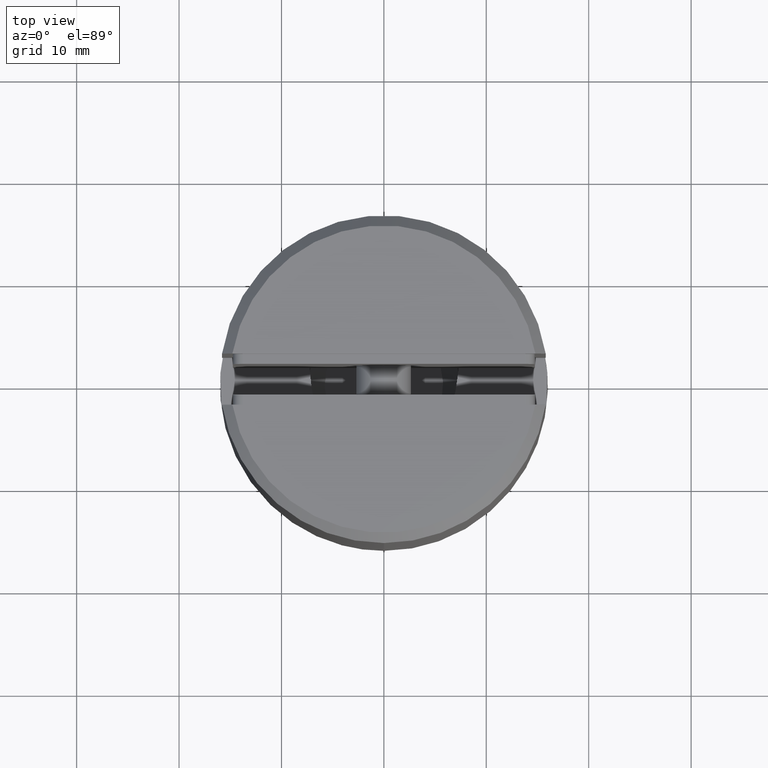
[diagram: clean part render]
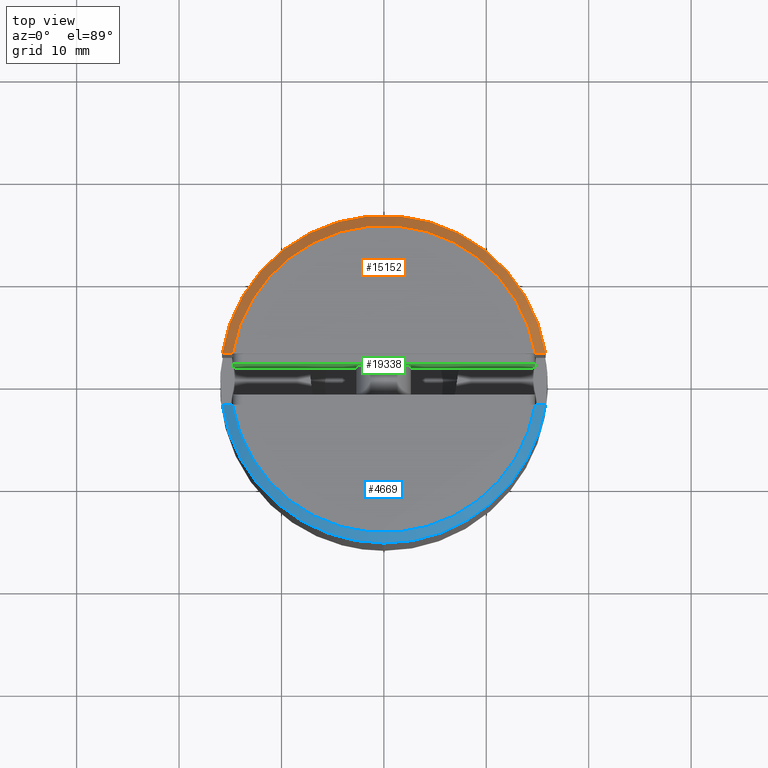
[diagram: same view with three faces highlighted in distinct colors, each labeled with its STEP entity id]
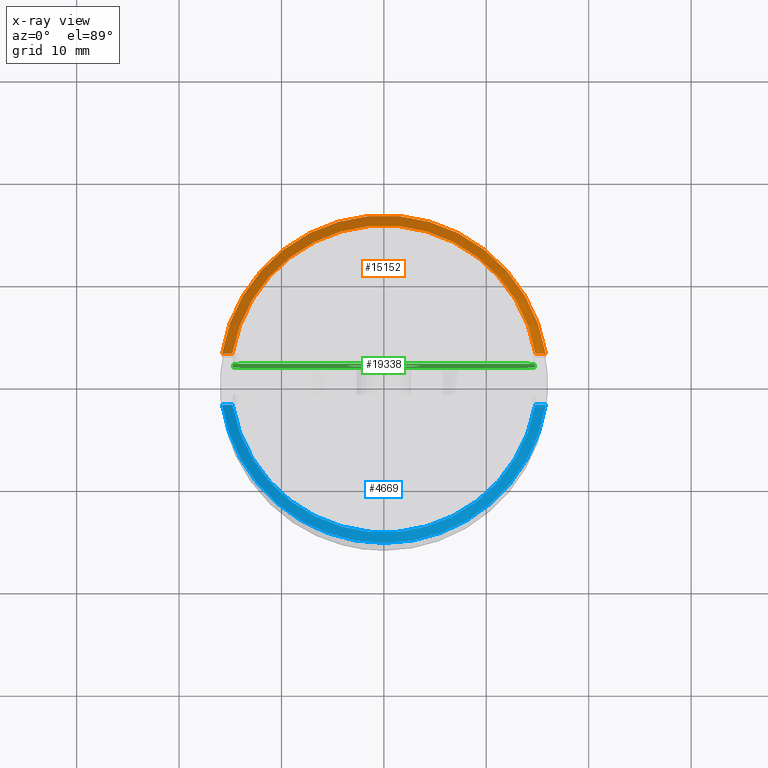
[diagram: x-ray of the same camera — body ghosted, the three highlighted faces saturated]
A machine part, top view with three faces highlighted in distinct colors.
The next image is the same camera in x-ray (body ghosted, the three faces saturated) — at least one of them is partly hidden behind the body in this view.
Their STEP definitions:

[orange] entity #15152 — the highlighted conical surface has half-angle 45 deg.
#859 = EDGE_LOOP ( 'NONE', ( #15137, #18231, #10368, #5494 ) ) ;
#1446 = CARTESIAN_POINT ( 'NONE',  ( -15.80348062927910924, 2.500000000000000444, 23.99999999999998934 ) ) ;
#2166 = B_SPLINE_CURVE_WITH_KNOTS ( 'NONE', 3,
 ( #7912, #19281, #11191, #1446 ),
 .UNSPECIFIED., .F., .F.,
 ( 4, 4 ),
 ( 0.000000000000000000, 0.001423635744345227083 ),
 .UNSPECIFIED. ) ;
#2239 = VERTEX_POINT ( 'NONE', #18148 ) ;
#2245 = VERTEX_POINT ( 'NONE', #19552 ) ;
#2541 = CONICAL_SURFACE ( 'NONE', #15593, 14.99999999999999645, 0.7853981633974447263 ) ;
#2667 = DIRECTION ( 'NONE',  ( 0.000000000000000000, 0.000000000000000000, -1.000000000000000000 ) ) ;
#3073 = EDGE_CURVE ( 'NONE', #2245, #2239, #4942, .T. ) ;
#3318 = VERTEX_POINT ( 'NONE', #18923 ) ;
#4942 = CIRCLE ( 'NONE', #12904, 14.99999999999999645 ) ;
#5019 = VERTEX_POINT ( 'NONE', #7646 ) ;
#5395 = CIRCLE ( 'NONE', #9108, 16.00000000000000000 ) ;
#5494 = ORIENTED_EDGE ( 'NONE', *, *, #3073, .F. ) ;
#7646 = CARTESIAN_POINT ( 'NONE',  ( 15.80348062927910924, 2.500000000000000444, 23.99999999999998934 ) ) ;
#7912 = CARTESIAN_POINT ( 'NONE',  ( -14.79019945774903455, 2.500000000000000444, 25.00000000000000000 ) ) ;
#8554 = DIRECTION ( 'NONE',  ( 0.000000000000000000, 0.000000000000000000, 1.000000000000000000 ) ) ;
#8626 = CARTESIAN_POINT ( 'NONE',  ( 0.000000000000000000, 0.000000000000000000, 25.00000000000000000 ) ) ;
#8646 = DIRECTION ( 'NONE',  ( -1.000000000000000000, 0.000000000000000000, 0.000000000000000000 ) ) ;
#8978 = CARTESIAN_POINT ( 'NONE',  ( 0.000000000000000000, 0.000000000000000000, 23.99999999999998934 ) ) ;
#9108 = AXIS2_PLACEMENT_3D ( 'NONE', #8978, #2667, #13966 ) ;
#10368 = ORIENTED_EDGE ( 'NONE', *, *, #20617, .F. ) ;
#11191 = CARTESIAN_POINT ( 'NONE',  ( -15.46585946293021863, 2.500000000000000444, 24.33347434765182271 ) ) ;
#12904 = AXIS2_PLACEMENT_3D ( 'NONE', #8626, #8554, #16606 ) ;
#13619 = CARTESIAN_POINT ( 'NONE',  ( 0.000000000000000000, 0.000000000000000000, 25.00000000000000000 ) ) ;
#13966 = DIRECTION ( 'NONE',  ( 1.000000000000000000, 0.000000000000000000, 0.000000000000000000 ) ) ;
#15075 = EDGE_CURVE ( 'NONE', #5019, #2245, #20420, .T. ) ;
#15137 = ORIENTED_EDGE ( 'NONE', *, *, #15075, .F. ) ;
#15152 = ADVANCED_FACE ( 'NONE', ( #20088 ), #2541, .T. ) ;
#15192 = DIRECTION ( 'NONE',  ( 0.000000000000000000, 0.000000000000000000, -1.000000000000000000 ) ) ;
#15593 = AXIS2_PLACEMENT_3D ( 'NONE', #13619, #15192, #8646 ) ;
#16606 = DIRECTION ( 'NONE',  ( 1.000000000000000000, 0.000000000000000000, 0.000000000000000000 ) ) ;
#16694 = CARTESIAN_POINT ( 'NONE',  ( 14.79019945774903633, 2.500000000000000444, 25.00000000000000000 ) ) ;
#16762 = CARTESIAN_POINT ( 'NONE',  ( 15.12810841561664787, 2.500000000000000444, 24.66681727430519544 ) ) ;
#16894 = CARTESIAN_POINT ( 'NONE',  ( 15.46585946293022218, 2.500000000000000444, 24.33347434765182271 ) ) ;
#18148 = CARTESIAN_POINT ( 'NONE',  ( -14.79019945774903455, 2.500000000000000444, 25.00000000000000000 ) ) ;
#18231 = ORIENTED_EDGE ( 'NONE', *, *, #20460, .F. ) ;
#18923 = CARTESIAN_POINT ( 'NONE',  ( -15.80348062927910924, 2.500000000000000444, 23.99999999999998934 ) ) ;
#19281 = CARTESIAN_POINT ( 'NONE',  ( -15.12810841561664610, 2.500000000000000444, 24.66681727430519544 ) ) ;
#19552 = CARTESIAN_POINT ( 'NONE',  ( 14.79019945774903633, 2.500000000000000444, 25.00000000000000000 ) ) ;
#19866 = CARTESIAN_POINT ( 'NONE',  ( 15.80348062927910924, 2.500000000000000444, 23.99999999999998934 ) ) ;
#20088 = FACE_OUTER_BOUND ( 'NONE', #859, .T. ) ;
#20420 = B_SPLINE_CURVE_WITH_KNOTS ( 'NONE', 3,
 ( #19866, #16894, #16762, #16694 ),
 .UNSPECIFIED., .F., .F.,
 ( 4, 4 ),
 ( 0.000000000000000000, 0.001423635744345223830 ),
 .UNSPECIFIED. ) ;
#20460 = EDGE_CURVE ( 'NONE', #3318, #5019, #5395, .T. ) ;
#20617 = EDGE_CURVE ( 'NONE', #2239, #3318, #2166, .T. ) ;

[blue] entity #4669 — the highlighted conical surface has half-angle 45 deg.
#421 = EDGE_CURVE ( 'NONE', #2759, #617, #17962, .T. ) ;
#617 = VERTEX_POINT ( 'NONE', #7041 ) ;
#636 = DIRECTION ( 'NONE',  ( -1.000000000000000000, 0.000000000000000000, 0.000000000000000000 ) ) ;
#1705 = CARTESIAN_POINT ( 'NONE',  ( -15.80348062927910568, -2.500000000000001332, 38.99999999999999289 ) ) ;
#2759 = VERTEX_POINT ( 'NONE', #20364 ) ;
#2778 = CIRCLE ( 'NONE', #17125, 15.00000000000000000 ) ;
#2953 = CARTESIAN_POINT ( 'NONE',  ( 14.79019945774903810, -2.500000000000001332, 40.00000000000000000 ) ) ;
#3355 = CARTESIAN_POINT ( 'NONE',  ( -15.12810841561664787, -2.500000000000001332, 39.66681727430518833 ) ) ;
#4669 = ADVANCED_FACE ( 'NONE', ( #12285 ), #19626, .T. ) ;
#4788 = VERTEX_POINT ( 'NONE', #19741 ) ;
#5010 = CARTESIAN_POINT ( 'NONE',  ( 15.12810841561665143, -2.500000000000001332, 39.66681727430518833 ) ) ;
#5564 = CARTESIAN_POINT ( 'NONE',  ( 0.000000000000000000, 4.946631544329935625E-16, 40.00000000000000000 ) ) ;
#7041 = CARTESIAN_POINT ( 'NONE',  ( -15.80348062927910568, -2.500000000000001332, 38.99999999999999289 ) ) ;
#7263 = CARTESIAN_POINT ( 'NONE',  ( 0.000000000000000000, 4.748766282556736780E-16, 38.99999999999999289 ) ) ;
#7479 = B_SPLINE_CURVE_WITH_KNOTS ( 'NONE', 3,
 ( #19528, #5010, #10334, #12640 ),
 .UNSPECIFIED., .F., .F.,
 ( 4, 4 ),
 ( 0.000000000000000000, 0.001423635744345217542 ),
 .UNSPECIFIED. ) ;
#8105 = CARTESIAN_POINT ( 'NONE',  ( -15.46585946293022218, -2.500000000000001776, 39.33347434765182271 ) ) ;
#8168 = DIRECTION ( 'NONE',  ( 0.000000000000000000, 1.000000000000000000, 0.000000000000000000 ) ) ;
#8236 = ORIENTED_EDGE ( 'NONE', *, *, #12964, .F. ) ;
#8903 = DIRECTION ( 'NONE',  ( 0.000000000000000000, -1.978652617731979205E-17, -1.000000000000000000 ) ) ;
#9615 = EDGE_LOOP ( 'NONE', ( #8236, #18978, #15852, #16499 ) ) ;
#10334 = CARTESIAN_POINT ( 'NONE',  ( 15.46585946293022218, -2.500000000000001332, 39.33347434765181561 ) ) ;
#10922 = B_SPLINE_CURVE_WITH_KNOTS ( 'NONE', 3,
 ( #1705, #8105, #3355, #13017 ),
 .UNSPECIFIED., .F., .F.,
 ( 4, 4 ),
 ( 3.469446951953614189E-18, 0.001423635744345220144 ),
 .UNSPECIFIED. ) ;
#12285 = FACE_OUTER_BOUND ( 'NONE', #9615, .T. ) ;
#12332 = DIRECTION ( 'NONE',  ( 0.000000000000000000, 1.000000000000000000, 0.000000000000000000 ) ) ;
#12640 = CARTESIAN_POINT ( 'NONE',  ( 15.80348062927910568, -2.500000000000001332, 38.99999999999999289 ) ) ;
#12964 = EDGE_CURVE ( 'NONE', #617, #4788, #10922, .T. ) ;
#13017 = CARTESIAN_POINT ( 'NONE',  ( -14.79019945774903988, -2.500000000000001332, 40.00000000000000000 ) ) ;
#15852 = ORIENTED_EDGE ( 'NONE', *, *, #16955, .F. ) ;
#15906 = AXIS2_PLACEMENT_3D ( 'NONE', #7263, #8903, #12332 ) ;
#16499 = ORIENTED_EDGE ( 'NONE', *, *, #17804, .F. ) ;
#16742 = AXIS2_PLACEMENT_3D ( 'NONE', #19464, #19537, #8168 ) ;
#16955 = EDGE_CURVE ( 'NONE', #20692, #2759, #7479, .T. ) ;
#17125 = AXIS2_PLACEMENT_3D ( 'NONE', #5564, #20122, #636 ) ;
#17804 = EDGE_CURVE ( 'NONE', #4788, #20692, #2778, .T. ) ;
#17962 = CIRCLE ( 'NONE', #15906, 16.00000000000000000 ) ;
#18978 = ORIENTED_EDGE ( 'NONE', *, *, #421, .F. ) ;
#19464 = CARTESIAN_POINT ( 'NONE',  ( 0.000000000000000000, 4.946631544329935625E-16, 40.00000000000000000 ) ) ;
#19528 = CARTESIAN_POINT ( 'NONE',  ( 14.79019945774903810, -2.500000000000001332, 40.00000000000000000 ) ) ;
#19537 = DIRECTION ( 'NONE',  ( 0.000000000000000000, -1.978652617731979205E-17, -1.000000000000000000 ) ) ;
#19626 = CONICAL_SURFACE ( 'NONE', #16742, 15.00000000000000000, 0.7853981633974447263 ) ;
#19741 = CARTESIAN_POINT ( 'NONE',  ( -14.79019945774903988, -2.500000000000001332, 40.00000000000000000 ) ) ;
#20122 = DIRECTION ( 'NONE',  ( 0.000000000000000000, 0.000000000000000000, 1.000000000000000000 ) ) ;
#20364 = CARTESIAN_POINT ( 'NONE',  ( 15.80348062927910568, -2.500000000000001332, 38.99999999999999289 ) ) ;
#20692 = VERTEX_POINT ( 'NONE', #2953 ) ;

[green] entity #19338 — the highlighted planar face has unit normal (0, -1, 0).
#78 = EDGE_LOOP ( 'NONE', ( #6790 ) ) ;
#713 = CARTESIAN_POINT ( 'NONE',  ( -13.75000000000000178, 0.000000000000000000, -10.24999999999999289 ) ) ;
#807 = DIRECTION ( 'NONE',  ( 0.000000000000000000, -1.000000000000000000, -0.000000000000000000 ) ) ;
#970 = DIRECTION ( 'NONE',  ( 0.000000000000000000, 0.000000000000000000, -1.000000000000000000 ) ) ;
#1275 = VERTEX_POINT ( 'NONE', #10006 ) ;
#1607 = CARTESIAN_POINT ( 'NONE',  ( -14.75000000000000000, 0.000000000000000000, 10.24999999999999822 ) ) ;
#2102 = LINE ( 'NONE', #5014, #8210 ) ;
#2255 = VECTOR ( 'NONE', #5699, 1000.000000000000000 ) ;
#2399 = CARTESIAN_POINT ( 'NONE',  ( -13.74999999999999822, 0.000000000000000000, 10.24999999999999822 ) ) ;
#2534 = EDGE_CURVE ( 'NONE', #1275, #1275, #2906, .T. ) ;
#2725 = AXIS2_PLACEMENT_3D ( 'NONE', #8418, #807, #20216 ) ;
#2828 = ORIENTED_EDGE ( 'NONE', *, *, #9321, .T. ) ;
#2874 = DIRECTION ( 'NONE',  ( 0.000000000000000000, 0.000000000000000000, -1.000000000000000000 ) ) ;
#2906 = CIRCLE ( 'NONE', #16859, 3.499999999999999556 ) ;
#2929 = VERTEX_POINT ( 'NONE', #12555 ) ;
#3315 = CARTESIAN_POINT ( 'NONE',  ( 0.000000000000000000, 0.000000000000000000, 0.000000000000000000 ) ) ;
#3881 = AXIS2_PLACEMENT_3D ( 'NONE', #713, #3934, #20119 ) ;
#3894 = DIRECTION ( 'NONE',  ( 0.000000000000000000, 1.000000000000000000, 0.000000000000000000 ) ) ;
#3934 = DIRECTION ( 'NONE',  ( 0.000000000000000000, -1.000000000000000000, -0.000000000000000000 ) ) ;
#4161 = EDGE_CURVE ( 'NONE', #5178, #19875, #2102, .T. ) ;
#4939 = DIRECTION ( 'NONE',  ( 0.000000000000000000, -1.000000000000000000, 0.000000000000000000 ) ) ;
#5014 = CARTESIAN_POINT ( 'NONE',  ( 14.75000000000000000, 0.000000000000000000, 11.24999999999999822 ) ) ;
#5016 = VERTEX_POINT ( 'NONE', #17424 ) ;
#5178 = VERTEX_POINT ( 'NONE', #14535 ) ;
#5271 = EDGE_CURVE ( 'NONE', #5178, #2929, #15570, .T. ) ;
#5321 = EDGE_LOOP ( 'NONE', ( #20536, #19021, #10968, #2828, #9670, #19388, #14415, #18255 ) ) ;
#5699 = DIRECTION ( 'NONE',  ( 1.000000000000000000, 0.000000000000000000, 0.000000000000000000 ) ) ;
#6196 = CIRCLE ( 'NONE', #17055, 1.000000000000000888 ) ;
#6723 = CIRCLE ( 'NONE', #8597, 1.000000000000000888 ) ;
#6790 = ORIENTED_EDGE ( 'NONE', *, *, #2534, .T. ) ;
#7073 = VECTOR ( 'NONE', #11836, 1000.000000000000000 ) ;
#7783 = VERTEX_POINT ( 'NONE', #17151 ) ;
#8210 = VECTOR ( 'NONE', #11773, 1000.000000000000000 ) ;
#8418 = CARTESIAN_POINT ( 'NONE',  ( 13.74999999999999822, 0.000000000000000000, 10.24999999999999822 ) ) ;
#8597 = AXIS2_PLACEMENT_3D ( 'NONE', #19143, #11189, #2874 ) ;
#9321 = EDGE_CURVE ( 'NONE', #7783, #19875, #6723, .T. ) ;
#9417 = LINE ( 'NONE', #20915, #20849 ) ;
#9461 = CIRCLE ( 'NONE', #3881, 0.9999999999999991118 ) ;
#9670 = ORIENTED_EDGE ( 'NONE', *, *, #4161, .F. ) ;
#9970 = EDGE_CURVE ( 'NONE', #20471, #18688, #6196, .T. ) ;
#9977 = PLANE ( 'NONE',  #11543 ) ;
#10006 = CARTESIAN_POINT ( 'NONE',  ( 0.000000000000000000, 0.000000000000000000, 3.499999999999999556 ) ) ;
#10968 = ORIENTED_EDGE ( 'NONE', *, *, #20558, .F. ) ;
#11189 = DIRECTION ( 'NONE',  ( 0.000000000000000000, -1.000000000000000000, -0.000000000000000000 ) ) ;
#11543 = AXIS2_PLACEMENT_3D ( 'NONE', #3315, #4939, #16330 ) ;
#11773 = DIRECTION ( 'NONE',  ( -1.541976423090495387E-16, 0.000000000000000000, -1.000000000000000000 ) ) ;
#11836 = DIRECTION ( 'NONE',  ( 1.541976423090496126E-16, -0.000000000000000000, 1.000000000000000000 ) ) ;
#12406 = FACE_BOUND ( 'NONE', #78, .T. ) ;
#12452 = LINE ( 'NONE', #20260, #2255 ) ;
#12555 = CARTESIAN_POINT ( 'NONE',  ( 13.74999999999999822, 0.000000000000000000, 11.24999999999999822 ) ) ;
#12716 = EDGE_CURVE ( 'NONE', #18421, #5016, #9461, .T. ) ;
#13533 = CARTESIAN_POINT ( 'NONE',  ( -14.75000000000000000, 0.000000000000000000, 11.24999999999999822 ) ) ;
#14415 = ORIENTED_EDGE ( 'NONE', *, *, #17993, .F. ) ;
#14535 = CARTESIAN_POINT ( 'NONE',  ( 14.75000000000000000, 0.000000000000000000, 10.24999999999999822 ) ) ;
#15570 = CIRCLE ( 'NONE', #2725, 1.000000000000000888 ) ;
#15721 = CARTESIAN_POINT ( 'NONE',  ( -14.75000000000000355, 0.000000000000000000, -10.24999999999998579 ) ) ;
#15965 = CARTESIAN_POINT ( 'NONE',  ( -13.74999999999999822, 0.000000000000000000, 11.24999999999999822 ) ) ;
#16330 = DIRECTION ( 'NONE',  ( 0.000000000000000000, 0.000000000000000000, -1.000000000000000000 ) ) ;
#16564 = CARTESIAN_POINT ( 'NONE',  ( 14.74999999999999645, 0.000000000000000000, -10.24999999999999289 ) ) ;
#16709 = EDGE_CURVE ( 'NONE', #18421, #18688, #19802, .T. ) ;
#16859 = AXIS2_PLACEMENT_3D ( 'NONE', #20012, #3894, #18395 ) ;
#16987 = DIRECTION ( 'NONE',  ( 0.000000000000000000, -1.000000000000000000, -0.000000000000000000 ) ) ;
#17055 = AXIS2_PLACEMENT_3D ( 'NONE', #2399, #16987, #970 ) ;
#17151 = CARTESIAN_POINT ( 'NONE',  ( 13.74999999999999467, 0.000000000000000000, -11.25000000000000178 ) ) ;
#17424 = CARTESIAN_POINT ( 'NONE',  ( -13.75000000000000178, 0.000000000000000000, -11.24999999999999112 ) ) ;
#17472 = DIRECTION ( 'NONE',  ( -1.000000000000000000, -0.000000000000000000, 3.528251137579946599E-16 ) ) ;
#17993 = EDGE_CURVE ( 'NONE', #20471, #2929, #12452, .T. ) ;
#18255 = ORIENTED_EDGE ( 'NONE', *, *, #9970, .T. ) ;
#18395 = DIRECTION ( 'NONE',  ( 0.000000000000000000, 0.000000000000000000, 1.000000000000000000 ) ) ;
#18421 = VERTEX_POINT ( 'NONE', #15721 ) ;
#18688 = VERTEX_POINT ( 'NONE', #1607 ) ;
#19009 = FACE_OUTER_BOUND ( 'NONE', #5321, .T. ) ;
#19021 = ORIENTED_EDGE ( 'NONE', *, *, #12716, .T. ) ;
#19143 = CARTESIAN_POINT ( 'NONE',  ( 13.74999999999999467, 0.000000000000000000, -10.25000000000000178 ) ) ;
#19338 = ADVANCED_FACE ( 'NONE', ( #19009, #12406 ), #9977, .T. ) ;
#19388 = ORIENTED_EDGE ( 'NONE', *, *, #5271, .T. ) ;
#19802 = LINE ( 'NONE', #13533, #7073 ) ;
#19875 = VERTEX_POINT ( 'NONE', #16564 ) ;
#20012 = CARTESIAN_POINT ( 'NONE',  ( 0.000000000000000000, 0.000000000000000000, 0.000000000000000000 ) ) ;
#20119 = DIRECTION ( 'NONE',  ( 0.000000000000000000, 0.000000000000000000, -1.000000000000000000 ) ) ;
#20216 = DIRECTION ( 'NONE',  ( 0.000000000000000000, 0.000000000000000000, -1.000000000000000000 ) ) ;
#20260 = CARTESIAN_POINT ( 'NONE',  ( -14.75000000000000000, 0.000000000000000000, 11.24999999999999822 ) ) ;
#20471 = VERTEX_POINT ( 'NONE', #15965 ) ;
#20536 = ORIENTED_EDGE ( 'NONE', *, *, #16709, .F. ) ;
#20558 = EDGE_CURVE ( 'NONE', #7783, #5016, #9417, .T. ) ;
#20849 = VECTOR ( 'NONE', #17472, 1000.000000000000000 ) ;
#20915 = CARTESIAN_POINT ( 'NONE',  ( -14.75000000000000355, 0.000000000000000000, -11.24999999999999112 ) ) ;